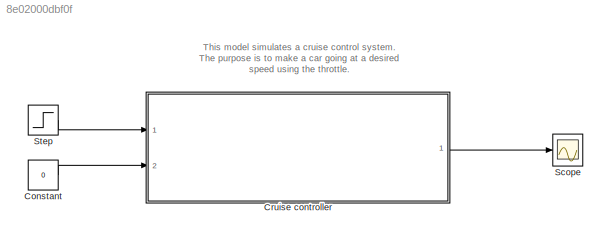
MODEL slx_8e02000dbf0f
KIND model
CONFIG PreLoadFcn = load('cruise_control.mat')
BLOCK [Constant] Constant
  Value = 0
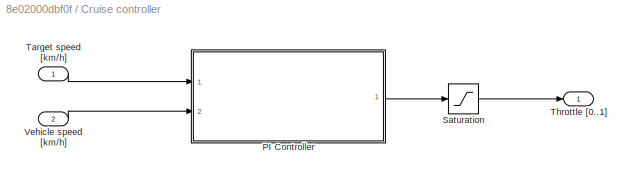
BLOCK [SubSystem] Cruise controller
  FunctionWithSeparateData = off
  MaskHideContents = off
  MinAlgLoopOccurrences = off
  Opaque = off
  Ports = [2, 1]
  PropExecContextOutsideSubsystem = off
  RTWSystemCode = Auto
  RequestExecContextInheritance = off
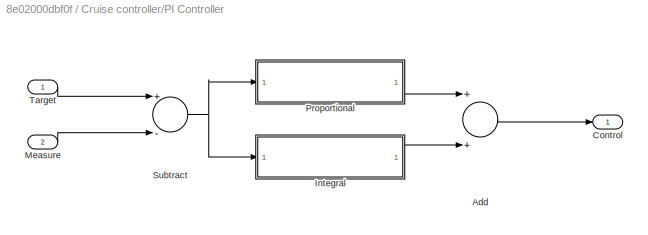
BLOCK [SubSystem] Cruise controller/PI Controller
  FunctionWithSeparateData = off
  MaskHideContents = off
  MinAlgLoopOccurrences = off
  Opaque = off
  Ports = [2, 1]
  PropExecContextOutsideSubsystem = off
  RTWSystemCode = Auto
  RequestExecContextInheritance = off
BLOCK [Sum] Cruise controller/PI Controller/Add
  InputSameDT = off
  OutDataTypeStr = Inherit: Inherit via internal rule
  Ports = [2, 1]
  SaturateOnIntegerOverflow = off
BLOCK [Outport] Cruise controller/PI Controller/Control
  IconDisplay = Port number
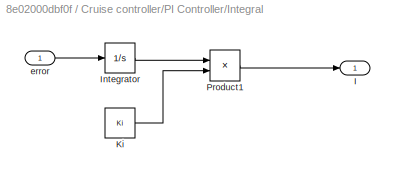
BLOCK [SubSystem] Cruise controller/PI Controller/Integral
  FunctionWithSeparateData = off
  MaskHideContents = off
  MinAlgLoopOccurrences = off
  Opaque = off
  Ports = [1, 1]
  PropExecContextOutsideSubsystem = off
  RTWSystemCode = Auto
  RequestExecContextInheritance = off
BLOCK [Outport] Cruise controller/PI Controller/Integral/I
  IconDisplay = Port number
BLOCK [Integrator] Cruise controller/PI Controller/Integral/Integrator
  Ports = [1, 1]
BLOCK [Constant] Cruise controller/PI Controller/Integral/Ki
  Value = Ki
BLOCK [Product] Cruise controller/PI Controller/Integral/Product1
  InputSameDT = off
  OutDataTypeStr = Inherit: Inherit via internal rule
  Ports = [2, 1]
  RndMeth = Floor
  SaturateOnIntegerOverflow = off
BLOCK [Inport] Cruise controller/PI Controller/Integral/error
  IconDisplay = Port number
BLOCK [Inport] Cruise controller/PI Controller/Measure
  IconDisplay = Port number
  Port = 2
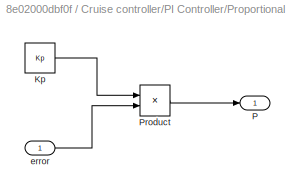
BLOCK [SubSystem] Cruise controller/PI Controller/Proportional
  FunctionWithSeparateData = off
  MaskHideContents = off
  MinAlgLoopOccurrences = off
  Opaque = off
  Ports = [1, 1]
  PropExecContextOutsideSubsystem = off
  RTWSystemCode = Auto
  RequestExecContextInheritance = off
BLOCK [Constant] Cruise controller/PI Controller/Proportional/Kp
  Value = Kp
BLOCK [Outport] Cruise controller/PI Controller/Proportional/P
  IconDisplay = Port number
BLOCK [Product] Cruise controller/PI Controller/Proportional/Product
  InputSameDT = off
  OutDataTypeStr = Inherit: Inherit via internal rule
  Ports = [2, 1]
  RndMeth = Floor
  SaturateOnIntegerOverflow = off
BLOCK [Inport] Cruise controller/PI Controller/Proportional/error
  IconDisplay = Port number
BLOCK [Sum] Cruise controller/PI Controller/Subtract
  InputSameDT = off
  Inputs = +-
  OutDataTypeStr = Inherit: Inherit via internal rule
  Ports = [2, 1]
  SaturateOnIntegerOverflow = off
BLOCK [Inport] Cruise controller/PI Controller/Target
  IconDisplay = Port number
BLOCK [Saturate] Cruise controller/Saturation
  InputPortMap = u0
  LowerLimit = 0
  Ports = [1, 1]
  UpperLimit = 1
BLOCK [Inport] Cruise controller/Target speed [km//h]
  IconDisplay = Port number
BLOCK [Outport] Cruise controller/Throttle [0..1]
  IconDisplay = Port number
BLOCK [Inport] Cruise controller/Vehicle speed [km//h]
  IconDisplay = Port number
  Port = 2
BLOCK [Scope] Scope
  DataFormat = StructureWithTime
  Floating = off
  NumInputPorts = 1
  Ports = [1]
  SampleTime = 0
  ShowLegends = off
BLOCK [Step] Step
  After = 0.1
  SampleTime = 0
ANNOTATION (root): This model simulates a cruise control system. The purpose is to make a car going at a desired speed using the throttle.
LINE Constant:1 -> Cruise controller:2
LINE Cruise controller/PI Controller/Add:1 -> Cruise controller/PI Controller/Control:1
LINE Cruise controller/PI Controller/Integral/Integrator:1 -> Cruise controller/PI Controller/Integral/Product1:1
LINE Cruise controller/PI Controller/Integral/Ki:1 -> Cruise controller/PI Controller/Integral/Product1:2
LINE Cruise controller/PI Controller/Integral/Product1:1 -> Cruise controller/PI Controller/Integral/I:1
LINE Cruise controller/PI Controller/Integral/error:1 -> Cruise controller/PI Controller/Integral/Integrator:1
LINE Cruise controller/PI Controller/Integral:1 -> Cruise controller/PI Controller/Add:2
LINE Cruise controller/PI Controller/Measure:1 -> Cruise controller/PI Controller/Subtract:2
LINE Cruise controller/PI Controller/Proportional/Kp:1 -> Cruise controller/PI Controller/Proportional/Product:1
LINE Cruise controller/PI Controller/Proportional/Product:1 -> Cruise controller/PI Controller/Proportional/P:1
LINE Cruise controller/PI Controller/Proportional/error:1 -> Cruise controller/PI Controller/Proportional/Product:2
LINE Cruise controller/PI Controller/Proportional:1 -> Cruise controller/PI Controller/Add:1
NET Cruise controller/PI Controller/Subtract:1 -> Cruise controller/PI Controller/Integral:1, Cruise controller/PI Controller/Proportional:1
LINE Cruise controller/PI Controller/Target:1 -> Cruise controller/PI Controller/Subtract:1
LINE Cruise controller/PI Controller:1 -> Cruise controller/Saturation:1
LINE Cruise controller/Saturation:1 -> Cruise controller/Throttle [0..1]:1
LINE Cruise controller/Target speed [km//h]:1 -> Cruise controller/PI Controller:1
LINE Cruise controller/Vehicle speed [km//h]:1 -> Cruise controller/PI Controller:2
LINE Cruise controller:1 -> Scope:1
LINE Step:1 -> Cruise controller:1
note: NET lines group one-source signal fan-out (src -> all destinations, sorted); 1:1 wires keep LINE
